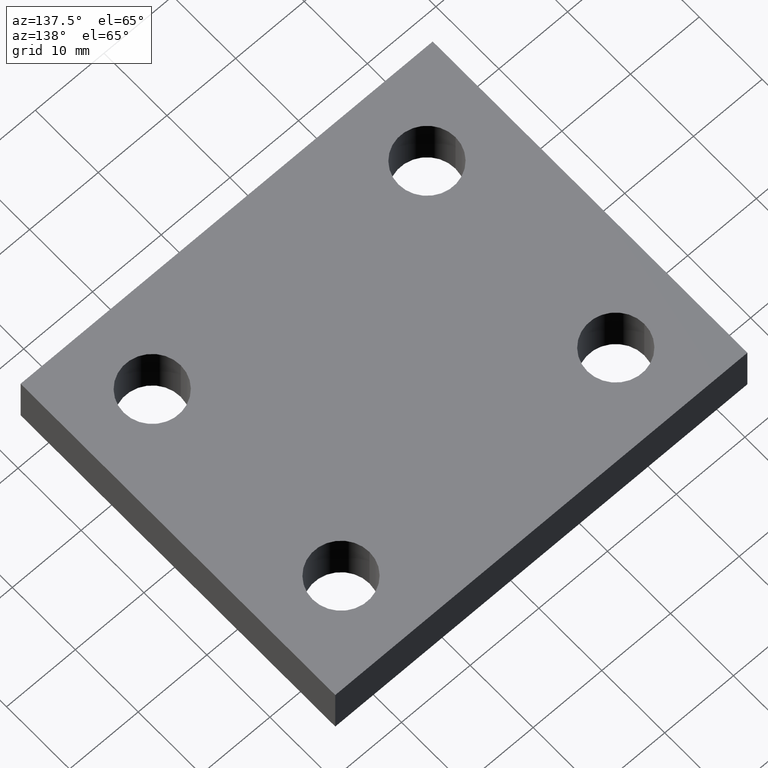
[diagram: clean part render]
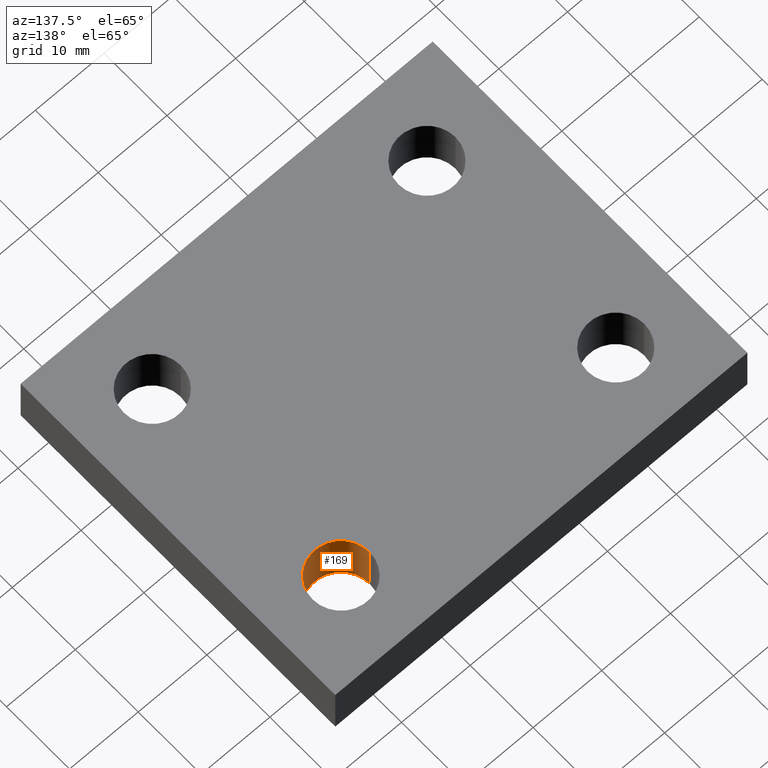
[diagram: same view with one face highlighted and labeled with its STEP entity id]
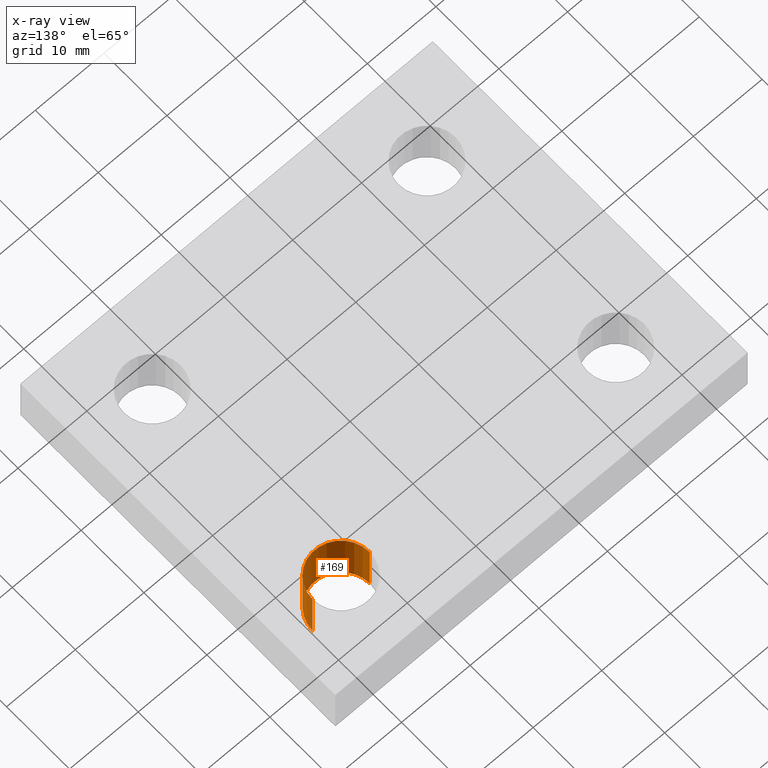
[diagram: x-ray of the same camera — body ghosted, the highlighted face saturated]
A machine part, auxiliary view. The second image highlights one B-rep face of the part: STEP entity #169.
The next image is the same camera in x-ray: the body ghosted, the highlighted face saturated — about 0% of this face is hidden behind the body in this view.
In plain terms, the highlighted face is a freeform B-spline surface patch.
Its self-contained STEP definition (entity closure, byte-faithful):
#107=CARTESIAN_POINT('',(61.789752180801720,-14.027373815230897,8.0));
#108=CARTESIAN_POINT('',(61.789752180801720,-14.027373815230897,0.0));
#109=CARTESIAN_POINT('',(61.789752180801727,-18.177373815230894,8.0));
#110=CARTESIAN_POINT('',(61.789752180801727,-18.177373815230894,0.0));
#111=CARTESIAN_POINT('',(65.939752180801719,-18.177373815230894,8.0));
#112=CARTESIAN_POINT('',(65.939752180801719,-18.177373815230894,0.0));
#113=CARTESIAN_POINT('',(70.089752180801710,-18.177373815230894,8.0));
#114=CARTESIAN_POINT('',(70.089752180801710,-18.177373815230894,0.0));
#115=CARTESIAN_POINT('',(70.089752180801725,-14.027373815230897,8.0));
#116=CARTESIAN_POINT('',(70.089752180801725,-14.027373815230897,0.0));
#117=CARTESIAN_POINT('',(70.089752180801710,-9.877373815230900,8.0));
#118=CARTESIAN_POINT('',(70.089752180801710,-9.877373815230900,0.0));
#119=CARTESIAN_POINT('',(65.939752180801719,-9.877373815230898,8.0));
#120=CARTESIAN_POINT('',(65.939752180801719,-9.877373815230898,0.0));
#121=CARTESIAN_POINT('',(61.789752180801727,-9.877373815230900,8.0));
#122=CARTESIAN_POINT('',(61.789752180801727,-9.877373815230900,0.0));
#123=CARTESIAN_POINT('',(61.789752180801720,-14.027373815230897,8.0));
#124=CARTESIAN_POINT('',(61.789752180801720,-14.027373815230897,0.0));
#132=(BOUNDED_SURFACE()B_SPLINE_SURFACE(1,2,((#107,#109,#111,#113,#115,#117,#119,#121,#123),(#108,#110,#112,#114,#116,#118,#120,#122,#124)),.UNSPECIFIED.,.F.,.T.,.U.)B_SPLINE_SURFACE_WITH_KNOTS((2,2),(3,2,2,2,3),(-0.963855421686747,0.963855421686747),(0.0,6.518804756198821,13.037609512397642,19.556414268596463,26.075219024795285),.UNSPECIFIED.)GEOMETRIC_REPRESENTATION_ITEM()RATIONAL_B_SPLINE_SURFACE(((1.0,0.707106781186548,1.0,0.707106781186548,1.0,0.707106781186548,1.0,0.707106781186548,1.0),(1.0,0.707106781186548,1.0,0.707106781186548,1.0,0.707106781186548,1.0,0.707106781186548,1.0)))REPRESENTATION_ITEM('')SURFACE());
#133=CARTESIAN_POINT('',(70.089752180801725,-14.027373815230897,0.0));
#134=VERTEX_POINT('',#133);
#135=CARTESIAN_POINT('',(70.089752180801725,-14.027373815230897,8.0));
#136=VERTEX_POINT('',#135);
#137=CARTESIAN_POINT('',(70.089752180801725,-14.027373815230897,0.0));
#138=DIRECTION('',(0.0,0.0,1.0));
#139=VECTOR('',#138,8.0);
#140=LINE('',#137,#139);
#141=EDGE_CURVE('',#134,#136,#140,.T.);
#142=ORIENTED_EDGE('',*,*,#141,.F.);
#143=CARTESIAN_POINT('',(61.789752180801720,-14.027373815230897,0.0));
#144=VERTEX_POINT('',#143);
#145=CARTESIAN_POINT('',(65.939752180801719,-14.027373815230897,0.0));
#146=DIRECTION('',(0.0,0.0,1.0));
#147=DIRECTION('',(1.0,0.0,0.0));
#148=AXIS2_PLACEMENT_3D('',#145,#146,#147);
#149=CIRCLE('',#148,4.150000000000000);
#150=EDGE_CURVE('',#144,#134,#149,.T.);
#151=ORIENTED_EDGE('',*,*,#150,.F.);
#152=CARTESIAN_POINT('',(61.789752180801720,-14.027373815230897,8.0));
#153=VERTEX_POINT('',#152);
#154=CARTESIAN_POINT('',(61.789752180801720,-14.027373815230897,8.0));
#155=DIRECTION('',(0.0,0.0,-1.0));
#156=VECTOR('',#155,8.0);
#157=LINE('',#154,#156);
#158=EDGE_CURVE('',#153,#144,#157,.T.);
#159=ORIENTED_EDGE('',*,*,#158,.F.);
#160=CARTESIAN_POINT('',(65.939752180801719,-14.027373815230897,8.0));
#161=DIRECTION('',(0.0,0.0,-1.0));
#162=DIRECTION('',(1.0,0.0,0.0));
#163=AXIS2_PLACEMENT_3D('',#160,#161,#162);
#164=CIRCLE('',#163,4.150000000000000);
#165=EDGE_CURVE('',#136,#153,#164,.T.);
#166=ORIENTED_EDGE('',*,*,#165,.F.);
#167=EDGE_LOOP('',(#142,#151,#159,#166));
#168=FACE_OUTER_BOUND('',#167,.T.);
#169=ADVANCED_FACE('',(#168),#132,.F.);